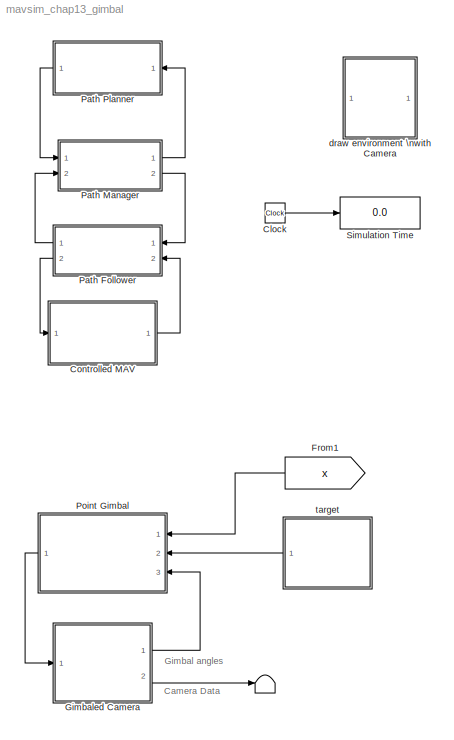
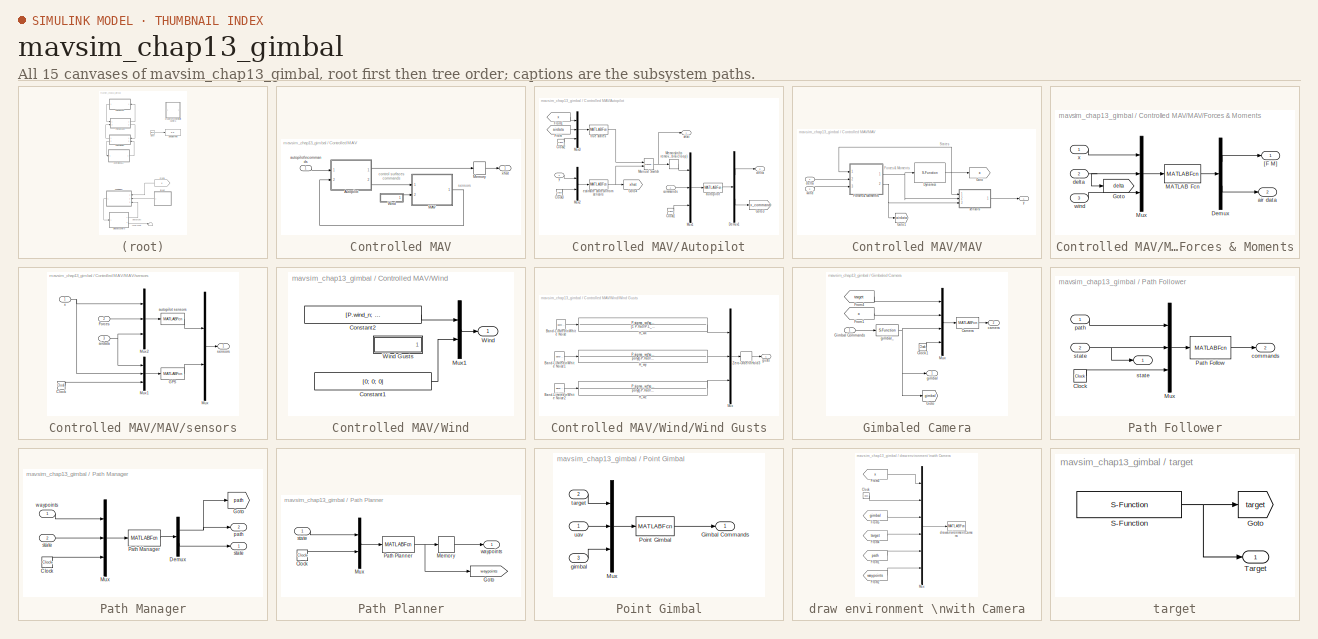
[diagram: thumbnail index - all 15 canvases of the model, root first then tree order]
MODEL mavsim_chap13_gimbal
KIND model
BLOCK [Terminator]  
  SID = 272
BLOCK [Clock] Clock
  Decimation = 10
  SID = 12
BLOCK [SubSystem] Controlled MAV
  FunctionWithSeparateData = off
  MaskDisplay = image(imread('batcam.png'))
  MaskHideContents = off
  MaskIconFrame = on
  MaskIconOpaque = on
  MaskIconRotate = none
  MaskIconUnits = autoscale
  MaskPortRotate = default
  MinAlgLoopOccurrences = off
  Opaque = off
  Ports = [1, 1]
  PropExecContextOutsideSubsystem = off
  RTWSystemCode = Auto
  RequestExecContextInheritance = off
  SID = 87
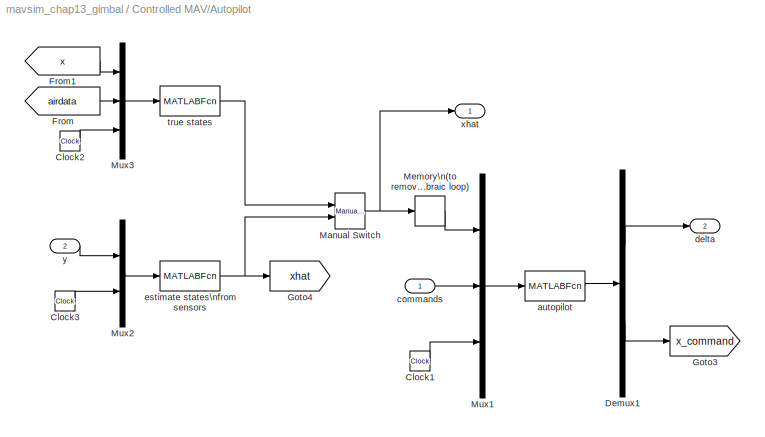
BLOCK [SubSystem] Controlled MAV/Autopilot
  FunctionWithSeparateData = off
  MaskDisplay = image(imread('kestrel.jpg'))
  MaskHideContents = off
  MaskIconFrame = on
  MaskIconOpaque = on
  MaskIconRotate = none
  MaskIconUnits = autoscale
  MaskPortRotate = default
  MinAlgLoopOccurrences = off
  Opaque = off
  Ports = [2, 2]
  PropExecContextOutsideSubsystem = off
  RTWSystemCode = Auto
  RequestExecContextInheritance = off
  SID = 1
BLOCK [Clock] Controlled MAV/Autopilot/Clock1
  Decimation = 10
  SID = 137
BLOCK [Clock] Controlled MAV/Autopilot/Clock2
  Decimation = 10
  SID = 138
BLOCK [Clock] Controlled MAV/Autopilot/Clock3
  Decimation = 10
  SID = 139
BLOCK [Demux] Controlled MAV/Autopilot/Demux1
  DisplayOption = bar
  Outputs = [4;12]
  Ports = [1, 2]
  SID = 140
BLOCK [From] Controlled MAV/Autopilot/From
  GotoTag = airdata
  SID = 141
  TagVisibility = global
BLOCK [From] Controlled MAV/Autopilot/From1
  GotoTag = x
  SID = 142
  TagVisibility = global
BLOCK [Goto] Controlled MAV/Autopilot/Goto3
  GotoTag = x_command
  SID = 143
  TagVisibility = global
BLOCK [Goto] Controlled MAV/Autopilot/Goto4
  GotoTag = xhat
  SID = 144
  TagVisibility = global
BLOCK [Reference] Controlled MAV/Autopilot/Manual Switch  REF=simulink/Signal\nRouting/Manual Switch
  FunctionWithSeparateData = off
  Ports = [2, 1]
  RTWMemSecDataConstants = Inherit from model
  RTWMemSecDataInternal = Inherit from model
  RTWMemSecDataParameters = Inherit from model
  RTWMemSecFuncExecute = Inherit from model
  RTWMemSecFuncInitTerm = Inherit from model
  SID = 145
  ShowPortLabels = FromPortIcon
  SourceBlock = simulink/Signal\nRouting/Manual Switch
  SourceType = Manual Switch
  SystemSampleTime = -1
  action = 0
  sw = 0
  varsize = off
BLOCK [Memory] Controlled MAV/Autopilot/Memory\n(to remove \nalgebraic loop)
  SID = 146
BLOCK [Mux] Controlled MAV/Autopilot/Mux1
  DisplayOption = bar
  Inputs = 3
  Ports = [3, 1]
  SID = 147
BLOCK [Mux] Controlled MAV/Autopilot/Mux2
  DisplayOption = bar
  Inputs = 2
  Ports = [2, 1]
  SID = 148
BLOCK [Mux] Controlled MAV/Autopilot/Mux3
  DisplayOption = bar
  Inputs = 3
  Ports = [3, 1]
  SID = 149
BLOCK [MATLABFcn] Controlled MAV/Autopilot/autopilot
  MATLABFcn = autopilot(u,P)
  OutputDimensions = 4+12
  Ports = [1, 1]
  SID = 150
  SampleTime = P.Ts
BLOCK [Inport] Controlled MAV/Autopilot/commands
  IconDisplay = Port number
  SID = 2
BLOCK [Outport] Controlled MAV/Autopilot/delta
  IconDisplay = Port number
  Port = 2
  SID = 11
BLOCK [MATLABFcn] Controlled MAV/Autopilot/estimate states\nfrom sensors
  MATLABFcn = estimate_states(u,P)
  OutputDimensions = 16
  Ports = [1, 1]
  SID = 151
  SampleTime = P.Ts
BLOCK [MATLABFcn] Controlled MAV/Autopilot/true states
  MATLABFcn = true_states(u,P)
  OutputDimensions = 16
  Ports = [1, 1]
  SID = 152
  SampleTime = P.Ts
BLOCK [Outport] Controlled MAV/Autopilot/xhat
  IconDisplay = Port number
  SID = 89
BLOCK [Inport] Controlled MAV/Autopilot/y
  IconDisplay = Port number
  Port = 2
  SID = 3
BLOCK [SubSystem] Controlled MAV/MAV
  FunctionWithSeparateData = off
  MaskDisplay = image(imread('batcam.png'))
  MaskHideContents = off
  MaskIconFrame = on
  MaskIconOpaque = on
  MaskIconRotate = none
  MaskIconUnits = autoscale
  MaskPortRotate = default
  MinAlgLoopOccurrences = off
  Opaque = off
  Ports = [2, 1]
  PropExecContextOutsideSubsystem = off
  RTWSystemCode = Auto
  RequestExecContextInheritance = off
  SID = 16
BLOCK [S-Function] Controlled MAV/MAV/Dynamics
  EnableBusSupport = off
  FunctionName = mav_dynamics
  MaskCallbackString = ||||||||||||||||
  MaskEnableString = on,on,on,on,on,on,on,on,on,on,on,on,on,on,on,on,on
  MaskIconFrame = on
  MaskIconOpaque = on
  MaskIconRotate = none
  MaskIconUnits = autoscale
  MaskPortRotate = default
  MaskPromptString = Mass|Jx|Jy|Jz|Jxz|Initial North position|Initial East position|Initial Down position|Initial velocy u0|Initial velocity v0|Initial velocity w0|Initial roll angle|Initial pitch angle|Initial yaw angle|Initial roll rate|Initial pitch rate|Initial yaw rate
  MaskStyleString = edit,edit,edit,edit,edit,edit,edit,edit,edit,edit,edit,edit,edit,edit,edit,edit,edit
  MaskToolTipString = on,on,on,on,on,on,on,on,on,on,on,on,on,on,on,on,on
  MaskTunableValueString = on,on,on,on,on,off,off,off,off,off,off,off,off,off,off,off,off
  MaskValueString = P.mass|P.Jx|P.Jy|P.Jz|P.Jxz|P.pn0|P.pe0|P.pd0|P.u0|P.v0|P.w0|P.phi0|P.theta0|P.psi0|P.p0|P.q0|P.r0
  MaskVariables = mass=@1;Jx=@2;Jy=@3;Jz=@4;Jxz=@5;pn0=@6;pe0=@7;pd0=@8;u0=@9;v0=@10;w0=@11;phi0=@12;theta0=@13;psi0=@14;p0=@15;q0=@16;r0=@17;
  MaskVisibilityString = on,on,on,on,on,on,on,on,on,on,on,on,on,on,on,on,on
  Parameters = mass,Jx,Jy,Jz,Jxz,pn0,pe0,pd0,u0,v0,w0,phi0,theta0,psi0,p0,q0,r0
  Ports = [1, 1]
  SID = 157
BLOCK [SubSystem] Controlled MAV/MAV/Forces & Moments
  FunctionWithSeparateData = off
  MaskHideContents = off
  MinAlgLoopOccurrences = off
  Opaque = off
  Ports = [3, 2]
  PropExecContextOutsideSubsystem = off
  RTWSystemCode = Auto
  RequestExecContextInheritance = off
  SID = 158
BLOCK [Demux] Controlled MAV/MAV/Forces & Moments/Demux
  DisplayOption = bar
  Outputs = [6;6]
  Ports = [1, 2]
  SID = 162
BLOCK [Goto] Controlled MAV/MAV/Forces & Moments/Goto
  GotoTag = delta
  SID = 163
  TagVisibility = global
BLOCK [MATLABFcn] Controlled MAV/MAV/Forces & Moments/MATLAB Fcn
  MATLABFcn = forces_moments(u(1:12),u(13:16),u(17:22),P)
  OutputDimensions = 12
  Ports = [1, 1]
  SID = 164
BLOCK [Mux] Controlled MAV/MAV/Forces & Moments/Mux
  DisplayOption = bar
  Inputs = 3
  Ports = [3, 1]
  SID = 165
BLOCK [Outport] Controlled MAV/MAV/Forces & Moments/[F M]
  IconDisplay = Port number
  SID = 166
BLOCK [Outport] Controlled MAV/MAV/Forces & Moments/air data
  IconDisplay = Port number
  Port = 2
  SID = 167
BLOCK [Inport] Controlled MAV/MAV/Forces & Moments/delta
  IconDisplay = Port number
  Port = 2
  SID = 160
BLOCK [Inport] Controlled MAV/MAV/Forces & Moments/wind
  IconDisplay = Port number
  Port = 3
  SID = 161
BLOCK [Inport] Controlled MAV/MAV/Forces & Moments/x
  IconDisplay = Port number
  SID = 159
BLOCK [Goto] Controlled MAV/MAV/Goto
  GotoTag = x
  SID = 168
  TagVisibility = global
BLOCK [Goto] Controlled MAV/MAV/Goto1
  GotoTag = airdata
  SID = 169
  TagVisibility = global
BLOCK [Inport] Controlled MAV/MAV/delta
  IconDisplay = Port number
  SID = 155
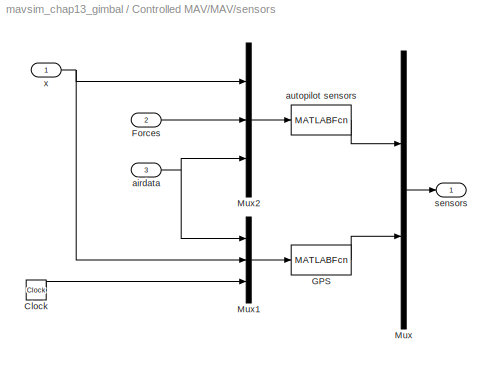
BLOCK [SubSystem] Controlled MAV/MAV/sensors
  FunctionWithSeparateData = off
  MaskHideContents = off
  MinAlgLoopOccurrences = off
  Opaque = off
  Ports = [3, 1]
  PropExecContextOutsideSubsystem = off
  RTWSystemCode = Auto
  RequestExecContextInheritance = off
  SID = 170
BLOCK [Clock] Controlled MAV/MAV/sensors/Clock
  Decimation = 10
  SID = 174
BLOCK [Inport] Controlled MAV/MAV/sensors/Forces
  IconDisplay = Port number
  Port = 2
  SID = 172
BLOCK [MATLABFcn] Controlled MAV/MAV/sensors/GPS
  MATLABFcn = gps(u,P)
  OutputDimensions = 5
  Ports = [1, 1]
  SID = 175
  SampleTime = P.Ts_gps
BLOCK [Mux] Controlled MAV/MAV/sensors/Mux
  DisplayOption = bar
  Inputs = 2
  Ports = [2, 1]
  SID = 176
BLOCK [Mux] Controlled MAV/MAV/sensors/Mux1
  DisplayOption = bar
  Inputs = 3
  Ports = [3, 1]
  SID = 177
BLOCK [Mux] Controlled MAV/MAV/sensors/Mux2
  DisplayOption = bar
  Inputs = 3
  Ports = [3, 1]
  SID = 178
BLOCK [Inport] Controlled MAV/MAV/sensors/airdata
  IconDisplay = Port number
  Port = 3
  SID = 173
BLOCK [MATLABFcn] Controlled MAV/MAV/sensors/autopilot sensors
  MATLABFcn = sensors(u,P)
  OutputDimensions = 8
  Ports = [1, 1]
  SID = 179
  SampleTime = P.Ts
BLOCK [Outport] Controlled MAV/MAV/sensors/sensors
  IconDisplay = Port number
  SID = 180
BLOCK [Inport] Controlled MAV/MAV/sensors/x
  IconDisplay = Port number
  SID = 171
BLOCK [Inport] Controlled MAV/MAV/wind
  IconDisplay = Port number
  Port = 2
  SID = 156
BLOCK [Outport] Controlled MAV/MAV/y
  IconDisplay = Port number
  SID = 181
BLOCK [Memory] Controlled MAV/Memory
  SID = 134
BLOCK [SubSystem] Controlled MAV/Wind
  FunctionWithSeparateData = off
  MaskHideContents = off
  MinAlgLoopOccurrences = off
  Opaque = off
  Ports = [0, 1]
  PropExecContextOutsideSubsystem = off
  RTWSystemCode = Auto
  RequestExecContextInheritance = off
  SID = 32
BLOCK [Constant] Controlled MAV/Wind/Constant1
  OutDataType = sfix(16)
  OutScaling = 2^0
  SID = 59
  Value = [0; 0; 0]
BLOCK [Constant] Controlled MAV/Wind/Constant2
  OutDataType = sfix(16)
  OutScaling = 2^0
  SID = 33
  Value = [P.wind_n; P.wind_e; P.wind_d]
BLOCK [Mux] Controlled MAV/Wind/Mux1
  DisplayOption = bar
  Inputs = 2
  Ports = [2, 1]
  SID = 34
BLOCK [Outport] Controlled MAV/Wind/Wind
  IconDisplay = Port number
  SID = 45
BLOCK [SubSystem] Controlled MAV/Wind/Wind Gusts
  FunctionWithSeparateData = off
  MaskHideContents = off
  MinAlgLoopOccurrences = off
  Opaque = off
  Ports = [0, 1]
  PropExecContextOutsideSubsystem = off
  RTWSystemCode = Auto
  RequestExecContextInheritance = off
  SID = 35
BLOCK [Reference] Controlled MAV/Wind/Wind Gusts/Band-Limited\nWhite Noise  REF=simulink/Sources/Band-Limited\nWhite Noise
  Cov = [1]
  FunctionWithSeparateData = off
  Ports = [0, 1]
  RTWMemSecDataConstants = Inherit from model
  RTWMemSecDataInternal = Inherit from model
  RTWMemSecDataParameters = Inherit from model
  RTWMemSecFuncExecute = Inherit from model
  RTWMemSecFuncInitTerm = Inherit from model
  SID = 36
  ShowPortLabels = FromPortIcon
  SourceBlock = simulink/Sources/Band-Limited\nWhite Noise
  SourceType = Band-Limited White Noise.
  SystemSampleTime = -1
  Ts = P.Ts
  VectorParams1D = on
  seed = [23341]
BLOCK [Reference] Controlled MAV/Wind/Wind Gusts/Band-Limited\nWhite Noise1  REF=simulink/Sources/Band-Limited\nWhite Noise
  Cov = [1]
  FunctionWithSeparateData = off
  Ports = [0, 1]
  RTWMemSecDataConstants = Inherit from model
  RTWMemSecDataInternal = Inherit from model
  RTWMemSecDataParameters = Inherit from model
  RTWMemSecFuncExecute = Inherit from model
  RTWMemSecFuncInitTerm = Inherit from model
  SID = 37
  ShowPortLabels = FromPortIcon
  SourceBlock = simulink/Sources/Band-Limited\nWhite Noise
  SourceType = Band-Limited White Noise.
  SystemSampleTime = -1
  Ts = P.Ts
  VectorParams1D = on
  seed = [23341]
BLOCK [Reference] Controlled MAV/Wind/Wind Gusts/Band-Limited\nWhite Noise2  REF=simulink/Sources/Band-Limited\nWhite Noise
  Cov = [1]
  FunctionWithSeparateData = off
  Ports = [0, 1]
  RTWMemSecDataConstants = Inherit from model
  RTWMemSecDataInternal = Inherit from model
  RTWMemSecDataParameters = Inherit from model
  RTWMemSecFuncExecute = Inherit from model
  RTWMemSecFuncInitTerm = Inherit from model
  SID = 38
  ShowPortLabels = FromPortIcon
  SourceBlock = simulink/Sources/Band-Limited\nWhite Noise
  SourceType = Band-Limited White Noise.
  SystemSampleTime = -1
  Ts = P.Ts
  VectorParams1D = on
  seed = [23341]
BLOCK [TransferFcn] Controlled MAV/Wind/Wind Gusts/H_wx
  Denominator = [1 P.Va0/P.L_wx]
  Numerator = P.sigma_wx*sqrt(2*P.Va0/P.L_wx)
  SID = 39
BLOCK [TransferFcn] Controlled MAV/Wind/Wind Gusts/H_wy
  Denominator = poly([-P.Va0/P.L_wy, -P.Va0/P.L_wy])
  Numerator = P.sigma_wy*sqrt(3*P.Va0/P.L_wy)*[0, 1, P.Va0/sqrt(3)/P.L_wy]
  SID = 40
BLOCK [TransferFcn] Controlled MAV/Wind/Wind Gusts/H_wz
  Denominator = poly([-P.Va0/P.L_wz, -P.Va0/P.L_wz])
  Numerator = P.sigma_wz*sqrt(3*P.Va0/P.L_wz)*[0, 1, P.Va0/sqrt(3)/P.L_wz]
  SID = 41
BLOCK [Mux] Controlled MAV/Wind/Wind Gusts/Mux
  DisplayOption = bar
  Inputs = 3
  Ports = [3, 1]
  SID = 42
BLOCK [ZeroOrderHold] Controlled MAV/Wind/Wind Gusts/Zero-Order\nHold3
  SID = 43
  SampleTime = P.Ts
BLOCK [Outport] Controlled MAV/Wind/Wind Gusts/gusts
  IconDisplay = Port number
  SID = 44
BLOCK [Inport] Controlled MAV/autopilot\ncommands
  IconDisplay = Port number
  SID = 88
BLOCK [Outport] Controlled MAV/xhat
  IconDisplay = Port number
  SID = 90
BLOCK [From] From1
  CloseFcn = tagdialog Close
  GotoTag = x
  SID = 273
  TagVisibility = global
BLOCK [SubSystem] Gimbaled Camera
  FunctionWithSeparateData = off
  MaskDisplay = image(imread('gimbal.jpg'))
  MaskHideContents = off
  MaskIconFrame = on
  MaskIconOpaque = on
  MaskIconRotate = none
  MaskIconUnits = autoscale
  MaskPortRotate = default
  MinAlgLoopOccurrences = off
  Opaque = off
  Ports = [1, 2]
  PropExecContextOutsideSubsystem = off
  RTWSystemCode = Auto
  RequestExecContextInheritance = off
  SID = 274
BLOCK [MATLABFcn] Gimbaled Camera/Camera
  MATLABFcn = camera(u,P)
  OutputDimensions = 3
  Ports = [1, 1]
  SID = 276
  SampleTime = 1/P.cam_fps
BLOCK [Clock] Gimbaled Camera/Clock1
  Decimation = 10
  SID = 277
BLOCK [From] Gimbaled Camera/From1
  CloseFcn = tagdialog Close
  GotoTag = x
  SID = 278
  TagVisibility = global
BLOCK [From] Gimbaled Camera/From4
  CloseFcn = tagdialog Close
  GotoTag = target
  SID = 279
  TagVisibility = global
BLOCK [Inport] Gimbaled Camera/Gimbal Commands
  IconDisplay = Port number
  OutDataType = sfix(16)
  OutScaling = 2^0
  SID = 275
BLOCK [Goto] Gimbaled Camera/Goto
  GotoTag = gimbal
  SID = 280
  TagVisibility = global
BLOCK [Mux] Gimbaled Camera/Mux
  DisplayOption = bar
  Ports = [4, 1]
  SID = 281
BLOCK [Outport] Gimbaled Camera/camera
  IconDisplay = Port number
  OutDataType = sfix(16)
  OutScaling = 2^0
  Port = 2
  SID = 284
BLOCK [Outport] Gimbaled Camera/gimbal
  IconDisplay = Port number
  OutDataType = sfix(16)
  OutScaling = 2^0
  SID = 283
BLOCK [S-Function] Gimbaled Camera/gimbal_
  EnableBusSupport = off
  FunctionName = gimbal
  Parameters = P
  Ports = [1, 1]
  SID = 282
BLOCK [SubSystem] Path Follower
  FunctionWithSeparateData = off
  MaskHideContents = off
  MinAlgLoopOccurrences = off
  Opaque = off
  Ports = [2, 2]
  PropExecContextOutsideSubsystem = off
  RTWSystemCode = Auto
  RequestExecContextInheritance = off
  SID = 197
BLOCK [Clock] Path Follower/Clock
  Decimation = 10
  SID = 200
BLOCK [Mux] Path Follower/Mux
  DisplayOption = bar
  Inputs = 3
  Ports = [3, 1]
  SID = 201
BLOCK [MATLABFcn] Path Follower/Path Follow
  MATLABFcn = path_follow(u,P)
  OutputDimensions = 3
  Ports = [1, 1]
  SID = 202
  SampleTime = P.Ts
BLOCK [Outport] Path Follower/commands
  IconDisplay = Port number
  Port = 2
  SID = 204
BLOCK [Inport] Path Follower/path
  IconDisplay = Port number
  SID = 198
BLOCK [Inport] Path Follower/state
  IconDisplay = Port number
  Port = 2
  SID = 199
BLOCK [Outport] Path Follower/state 
  IconDisplay = Port number
  SID = 203
BLOCK [SubSystem] Path Manager
  FunctionWithSeparateData = off
  MaskHideContents = off
  MinAlgLoopOccurrences = off
  Opaque = off
  Ports = [2, 2]
  PropExecContextOutsideSubsystem = off
  RTWSystemCode = Auto
  RequestExecContextInheritance = off
  SID = 255
BLOCK [Clock] Path Manager/Clock
  Decimation = 10
  SID = 258
BLOCK [Demux] Path Manager/Demux
  DisplayOption = bar
  Outputs = [13;17]
  Ports = [1, 2]
  SID = 259
BLOCK [Goto] Path Manager/Goto
  GotoTag = path
  SID = 260
  TagVisibility = global
BLOCK [Mux] Path Manager/Mux
  DisplayOption = bar
  Inputs = 3
  Ports = [3, 1]
  SID = 261
BLOCK [MATLABFcn] Path Manager/Path Manager
  MATLABFcn = path_manager(u,P)
  OutputDimensions = 30
  Ports = [1, 1]
  SID = 262
  SampleTime = P.Ts
BLOCK [Outport] Path Manager/path
  IconDisplay = Port number
  Port = 2
  SID = 264
BLOCK [Inport] Path Manager/state
  IconDisplay = Port number
  Port = 2
  SID = 257
BLOCK [Outport] Path Manager/state 
  IconDisplay = Port number
  SID = 263
BLOCK [Inport] Path Manager/waypoints
  IconDisplay = Port number
  SID = 256
BLOCK [SubSystem] Path Planner
  FunctionWithSeparateData = off
  MaskHideContents = off
  MinAlgLoopOccurrences = off
  Opaque = off
  Ports = [1, 1]
  PropExecContextOutsideSubsystem = off
  RTWSystemCode = Auto
  RequestExecContextInheritance = off
  SID = 247
BLOCK [Clock] Path Planner/Clock
  Decimation = 10
  SID = 249
BLOCK [Goto] Path Planner/Goto
  GotoTag = waypoints
  SID = 250
  TagVisibility = global
BLOCK [Memory] Path Planner/Memory
  SID = 251
BLOCK [Mux] Path Planner/Mux
  DisplayOption = bar
  Inputs = 2
  Ports = [2, 1]
  SID = 252
BLOCK [MATLABFcn] Path Planner/Path Planner
  MATLABFcn = path_planner(u,P,map)
  OutputDimensions = 1+5*P.size_waypoint_array
  Ports = [1, 1]
  SID = 253
  SampleTime = 100*P.Ts
BLOCK [Inport] Path Planner/state
  IconDisplay = Port number
  SID = 248
BLOCK [Outport] Path Planner/waypoints
  IconDisplay = Port number
  SID = 254
BLOCK [SubSystem] Point Gimbal
  FunctionWithSeparateData = off
  MaskHideContents = off
  MinAlgLoopOccurrences = off
  Opaque = off
  Ports = [3, 1]
  PropExecContextOutsideSubsystem = off
  RTWSystemCode = Auto
  RequestExecContextInheritance = off
  SID = 285
BLOCK [Outport] Point Gimbal/Gimbal Commands
  IconDisplay = Port number
  OutDataType = sfix(16)
  OutScaling = 2^0
  SID = 291
BLOCK [Mux] Point Gimbal/Mux
  DisplayOption = bar
  Inputs = 3
  Ports = [3, 1]
  SID = 289
BLOCK [MATLABFcn] Point Gimbal/Point Gimbal
  MATLABFcn = point_gimbal(u,P)
  OutputDimensions = 2
  Ports = [1, 1]
  SID = 290
  SampleTime = P.Ts
BLOCK [Inport] Point Gimbal/gimbal
  IconDisplay = Port number
  OutDataType = sfix(16)
  OutScaling = 2^0
  Port = 3
  SID = 288
BLOCK [Inport] Point Gimbal/target
  IconDisplay = Port number
  OutDataType = sfix(16)
  OutScaling = 2^0
  Port = 2
  SID = 287
BLOCK [Inport] Point Gimbal/uav
  IconDisplay = Port number
  OutDataType = sfix(16)
  OutScaling = 2^0
  SID = 286
BLOCK [Display] Simulation Time
  Decimation = 1
  Lockdown = off
  Ports = [1]
  SID = 31
BLOCK [SubSystem] draw environment \nwith Camera
  FunctionWithSeparateData = off
  MaskCallbackString = ||
  MaskDisplay = image(imread('tv.jpg'))
  MaskEnableString = on,on,on
  MaskHideContents = off
  MaskIconFrame = on
  MaskIconOpaque = on
  MaskIconRotate = none
  MaskIconUnits = autoscale
  MaskInitialization = % parameters for drawing aircraft\n  % scale size\n  size = 1;\n  fuse_l1    = 7;\n  fuse_l2    = 4;\n  fuse_l3    = 15;\n  fuse_w     = 2;\n  wing_l     = 6;\n  wing_w     = 20;\n  tail_l     = 3;\n  tail_h     = 3;\n  tailwing_w = 10;\n  tailwing_l = 3;\n  % colors\n  red     = [1, 0, 0];\n  green   = [0, 1, 0];\n  blue    = [0, 0, 1];\n  yellow  = [1,1,0];\n  magenta = [0, 1, 1];\n  \n\n% defin...<+2046ch>
  MaskPortRotate = default
  MaskPromptString = map|R_min|FOV of Camera
  MaskStyleString = edit,edit,edit
  MaskToolTipString = on,on,on
  MaskTunableValueString = on,on,on
  MaskValueString = map|P.R_min|P.cam_fov
  MaskVariables = map=@1;R_min=@2;cam_fov=@3;
  MaskVisibilityString = on,on,on
  MinAlgLoopOccurrences = off
  Opaque = off
  Ports = []
  PropExecContextOutsideSubsystem = off
  RTWSystemCode = Auto
  RequestExecContextInheritance = off
  SID = 296
BLOCK [Clock] draw environment \nwith Camera/Clock
  Decimation = 10
  SID = 297
BLOCK [From] draw environment \nwith Camera/From1
  CloseFcn = tagdialog Close
  GotoTag = path
  SID = 298
  TagVisibility = global
BLOCK [From] draw environment \nwith Camera/From2
  CloseFcn = tagdialog Close
  GotoTag = waypoints
  SID = 299
  TagVisibility = global
BLOCK [From] draw environment \nwith Camera/From3
  CloseFcn = tagdialog Close
  GotoTag = x
  SID = 300
  TagVisibility = global
BLOCK [From] draw environment \nwith Camera/From4
  CloseFcn = tagdialog Close
  GotoTag = target
  SID = 301
  TagVisibility = global
BLOCK [From] draw environment \nwith Camera/From5
  CloseFcn = tagdialog Close
  GotoTag = gimbal
  SID = 302
  TagVisibility = global
BLOCK [Mux] draw environment \nwith Camera/Mux
  DisplayOption = bar
  Inputs = 6
  Ports = [6, 1]
  SID = 303
BLOCK [MATLABFcn] draw environment \nwith Camera/drawEnvironmentCamera
  MATLABFcn = drawEnvironmentCamera(u,V,F,colors,map,R_min,cam_fov)
  OutputDimensions = 0
  Ports = [1]
  SID = 304
  SampleTime = 0.1
BLOCK [SubSystem] target
  FunctionWithSeparateData = off
  MaskDisplay = image(imread('monstertruck.jpg'))
  MaskHideContents = off
  MaskIconFrame = on
  MaskIconOpaque = on
  MaskIconRotate = none
  MaskIconUnits = autoscale
  MaskPortRotate = default
  MinAlgLoopOccurrences = off
  Opaque = off
  Ports = [0, 1]
  PropExecContextOutsideSubsystem = off
  RTWSystemCode = Auto
  RequestExecContextInheritance = off
  SID = 292
BLOCK [Goto] target/Goto
  GotoTag = target
  SID = 293
  TagVisibility = global
BLOCK [S-Function] target/S-Function
  EnableBusSupport = off
  FunctionName = target_motion
  Parameters = P,map
  Ports = [0, 1]
  SID = 294
BLOCK [Outport] target/Target
  IconDisplay = Port number
  OutDataType = sfix(16)
  OutScaling = 2^0
  SID = 295
ANNOTATION (root): Camera Data
ANNOTATION (root): Gimbal angles
ANNOTATION Controlled MAV: control surfaces\ncommands
ANNOTATION Controlled MAV: sensors
ANNOTATION Controlled MAV/MAV: Forces & Moments
ANNOTATION Controlled MAV/MAV: States
LINE Clock:1 -> Simulation Time:1
LINE Controlled MAV/Autopilot/Clock1:1 -> Controlled MAV/Autopilot/Mux1:3
LINE Controlled MAV/Autopilot/Clock2:1 -> Controlled MAV/Autopilot/Mux3:3
LINE Controlled MAV/Autopilot/Clock3:1 -> Controlled MAV/Autopilot/Mux2:2
LINE Controlled MAV/Autopilot/Demux1:1 -> Controlled MAV/Autopilot/delta:1
LINE Controlled MAV/Autopilot/Demux1:2 -> Controlled MAV/Autopilot/Goto3:1
LINE Controlled MAV/Autopilot/From1:1 -> Controlled MAV/Autopilot/Mux3:1
LINE Controlled MAV/Autopilot/From:1 -> Controlled MAV/Autopilot/Mux3:2
NET Controlled MAV/Autopilot/Manual Switch:1 -> Controlled MAV/Autopilot/Memory\n(to remove \nalgebraic loop):1, Controlled MAV/Autopilot/xhat:1
LINE Controlled MAV/Autopilot/Memory\n(to remove \nalgebraic loop):1 -> Controlled MAV/Autopilot/Mux1:1
LINE Controlled MAV/Autopilot/Mux1:1 -> Controlled MAV/Autopilot/autopilot:1
LINE Controlled MAV/Autopilot/Mux2:1 -> Controlled MAV/Autopilot/estimate states\nfrom sensors:1
LINE Controlled MAV/Autopilot/Mux3:1 -> Controlled MAV/Autopilot/true states:1
LINE Controlled MAV/Autopilot/autopilot:1 -> Controlled MAV/Autopilot/Demux1:1
LINE Controlled MAV/Autopilot/commands:1 -> Controlled MAV/Autopilot/Mux1:2
NET Controlled MAV/Autopilot/estimate states\nfrom sensors:1 -> Controlled MAV/Autopilot/Goto4:1, Controlled MAV/Autopilot/Manual Switch:2
LINE Controlled MAV/Autopilot/true states:1 -> Controlled MAV/Autopilot/Manual Switch:1
LINE Controlled MAV/Autopilot/y:1 -> Controlled MAV/Autopilot/Mux2:1
LINE Controlled MAV/Autopilot:1 -> Controlled MAV/Memory:1
LINE Controlled MAV/Autopilot:2 -> Controlled MAV/MAV:1
NET Controlled MAV/MAV/Dynamics:1 -> Controlled MAV/MAV/Forces & Moments:1, Controlled MAV/MAV/Goto:1, Controlled MAV/MAV/sensors:1
LINE Controlled MAV/MAV/Forces & Moments/Demux:1 -> Controlled MAV/MAV/Forces & Moments/[F M]:1
LINE Controlled MAV/MAV/Forces & Moments/Demux:2 -> Controlled MAV/MAV/Forces & Moments/air data:1
LINE Controlled MAV/MAV/Forces & Moments/MATLAB Fcn:1 -> Controlled MAV/MAV/Forces & Moments/Demux:1
LINE Controlled MAV/MAV/Forces & Moments/Mux:1 -> Controlled MAV/MAV/Forces & Moments/MATLAB Fcn:1
NET Controlled MAV/MAV/Forces & Moments/delta:1 -> Controlled MAV/MAV/Forces & Moments/Goto:1, Controlled MAV/MAV/Forces & Moments/Mux:2
LINE Controlled MAV/MAV/Forces & Moments/wind:1 -> Controlled MAV/MAV/Forces & Moments/Mux:3
LINE Controlled MAV/MAV/Forces & Moments/x:1 -> Controlled MAV/MAV/Forces & Moments/Mux:1
NET Controlled MAV/MAV/Forces & Moments:1 -> Controlled MAV/MAV/Dynamics:1, Controlled MAV/MAV/sensors:2
NET Controlled MAV/MAV/Forces & Moments:2 -> Controlled MAV/MAV/Goto1:1, Controlled MAV/MAV/sensors:3
LINE Controlled MAV/MAV/delta:1 -> Controlled MAV/MAV/Forces & Moments:2
LINE Controlled MAV/MAV/sensors/Clock:1 -> Controlled MAV/MAV/sensors/Mux1:3
LINE Controlled MAV/MAV/sensors/Forces:1 -> Controlled MAV/MAV/sensors/Mux2:2
LINE Controlled MAV/MAV/sensors/GPS:1 -> Controlled MAV/MAV/sensors/Mux:2
LINE Controlled MAV/MAV/sensors/Mux1:1 -> Controlled MAV/MAV/sensors/GPS:1
LINE Controlled MAV/MAV/sensors/Mux2:1 -> Controlled MAV/MAV/sensors/autopilot sensors:1
LINE Controlled MAV/MAV/sensors/Mux:1 -> Controlled MAV/MAV/sensors/sensors:1
NET Controlled MAV/MAV/sensors/airdata:1 -> Controlled MAV/MAV/sensors/Mux1:1, Controlled MAV/MAV/sensors/Mux2:3
LINE Controlled MAV/MAV/sensors/autopilot sensors:1 -> Controlled MAV/MAV/sensors/Mux:1
NET Controlled MAV/MAV/sensors/x:1 -> Controlled MAV/MAV/sensors/Mux1:2, Controlled MAV/MAV/sensors/Mux2:1
LINE Controlled MAV/MAV/sensors:1 -> Controlled MAV/MAV/y:1
LINE Controlled MAV/MAV/wind:1 -> Controlled MAV/MAV/Forces & Moments:3
LINE Controlled MAV/MAV:1 -> Controlled MAV/Autopilot:2
LINE Controlled MAV/Memory:1 -> Controlled MAV/xhat:1
LINE Controlled MAV/Wind/Constant1:1 -> Controlled MAV/Wind/Mux1:2
LINE Controlled MAV/Wind/Constant2:1 -> Controlled MAV/Wind/Mux1:1
LINE Controlled MAV/Wind/Mux1:1 -> Controlled MAV/Wind/Wind:1
LINE Controlled MAV/Wind/Wind Gusts/Band-Limited\nWhite Noise1:1 -> Controlled MAV/Wind/Wind Gusts/H_wy:1
LINE Controlled MAV/Wind/Wind Gusts/Band-Limited\nWhite Noise2:1 -> Controlled MAV/Wind/Wind Gusts/H_wz:1
LINE Controlled MAV/Wind/Wind Gusts/Band-Limited\nWhite Noise:1 -> Controlled MAV/Wind/Wind Gusts/H_wx:1
LINE Controlled MAV/Wind/Wind Gusts/H_wx:1 -> Controlled MAV/Wind/Wind Gusts/Mux:1
LINE Controlled MAV/Wind/Wind Gusts/H_wy:1 -> Controlled MAV/Wind/Wind Gusts/Mux:2
LINE Controlled MAV/Wind/Wind Gusts/H_wz:1 -> Controlled MAV/Wind/Wind Gusts/Mux:3
LINE Controlled MAV/Wind/Wind Gusts/Mux:1 -> Controlled MAV/Wind/Wind Gusts/Zero-Order\nHold3:1
LINE Controlled MAV/Wind/Wind Gusts/Zero-Order\nHold3:1 -> Controlled MAV/Wind/Wind Gusts/gusts:1
LINE Controlled MAV/Wind:1 -> Controlled MAV/MAV:2
LINE Controlled MAV/autopilot\ncommands:1 -> Controlled MAV/Autopilot:1
LINE Controlled MAV:1 -> Path Follower:2
LINE From1:1 -> Point Gimbal:1
LINE Gimbaled Camera/Camera:1 -> Gimbaled Camera/camera:1
LINE Gimbaled Camera/Clock1:1 -> Gimbaled Camera/Mux:4
LINE Gimbaled Camera/From1:1 -> Gimbaled Camera/Mux:2
LINE Gimbaled Camera/From4:1 -> Gimbaled Camera/Mux:1
LINE Gimbaled Camera/Gimbal Commands:1 -> Gimbaled Camera/gimbal_:1
LINE Gimbaled Camera/Mux:1 -> Gimbaled Camera/Camera:1
NET Gimbaled Camera/gimbal_:1 -> Gimbaled Camera/Goto:1, Gimbaled Camera/Mux:3, Gimbaled Camera/gimbal:1
LINE Gimbaled Camera:1 -> Point Gimbal:3
LINE Gimbaled Camera:2 ->  :1
LINE Path Follower/Clock:1 -> Path Follower/Mux:3
LINE Path Follower/Mux:1 -> Path Follower/Path Follow:1
LINE Path Follower/Path Follow:1 -> Path Follower/commands:1
LINE Path Follower/path:1 -> Path Follower/Mux:1
NET Path Follower/state:1 -> Path Follower/Mux:2, Path Follower/state :1
LINE Path Follower:1 -> Path Manager:2
LINE Path Follower:2 -> Controlled MAV:1
LINE Path Manager/Clock:1 -> Path Manager/Mux:3
NET Path Manager/Demux:1 -> Path Manager/Goto:1, Path Manager/path:1
LINE Path Manager/Demux:2 -> Path Manager/state :1
LINE Path Manager/Mux:1 -> Path Manager/Path Manager:1
LINE Path Manager/Path Manager:1 -> Path Manager/Demux:1
LINE Path Manager/state:1 -> Path Manager/Mux:2
LINE Path Manager/waypoints:1 -> Path Manager/Mux:1
LINE Path Manager:1 -> Path Planner:1
LINE Path Manager:2 -> Path Follower:1
LINE Path Planner/Clock:1 -> Path Planner/Mux:2
LINE Path Planner/Memory:1 -> Path Planner/waypoints:1
LINE Path Planner/Mux:1 -> Path Planner/Path Planner:1
NET Path Planner/Path Planner:1 -> Path Planner/Goto:1, Path Planner/Memory:1
LINE Path Planner/state:1 -> Path Planner/Mux:1
LINE Path Planner:1 -> Path Manager:1
LINE Point Gimbal/Mux:1 -> Point Gimbal/Point Gimbal:1
LINE Point Gimbal/Point Gimbal:1 -> Point Gimbal/Gimbal Commands:1
LINE Point Gimbal/gimbal:1 -> Point Gimbal/Mux:3
LINE Point Gimbal/target:1 -> Point Gimbal/Mux:1
LINE Point Gimbal/uav:1 -> Point Gimbal/Mux:2
LINE Point Gimbal:1 -> Gimbaled Camera:1
LINE draw environment \nwith Camera/Clock:1 -> draw environment \nwith Camera/Mux:2
LINE draw environment \nwith Camera/From1:1 -> draw environment \nwith Camera/Mux:5
LINE draw environment \nwith Camera/From2:1 -> draw environment \nwith Camera/Mux:6
LINE draw environment \nwith Camera/From3:1 -> draw environment \nwith Camera/Mux:1
LINE draw environment \nwith Camera/From4:1 -> draw environment \nwith Camera/Mux:4
LINE draw environment \nwith Camera/From5:1 -> draw environment \nwith Camera/Mux:3
LINE draw environment \nwith Camera/Mux:1 -> draw environment \nwith Camera/drawEnvironmentCamera:1
NET target/S-Function:1 -> target/Goto:1, target/Target:1
LINE target:1 -> Point Gimbal:2
note: NET lines group one-source signal fan-out (src -> all destinations, sorted); 1:1 wires keep LINE
